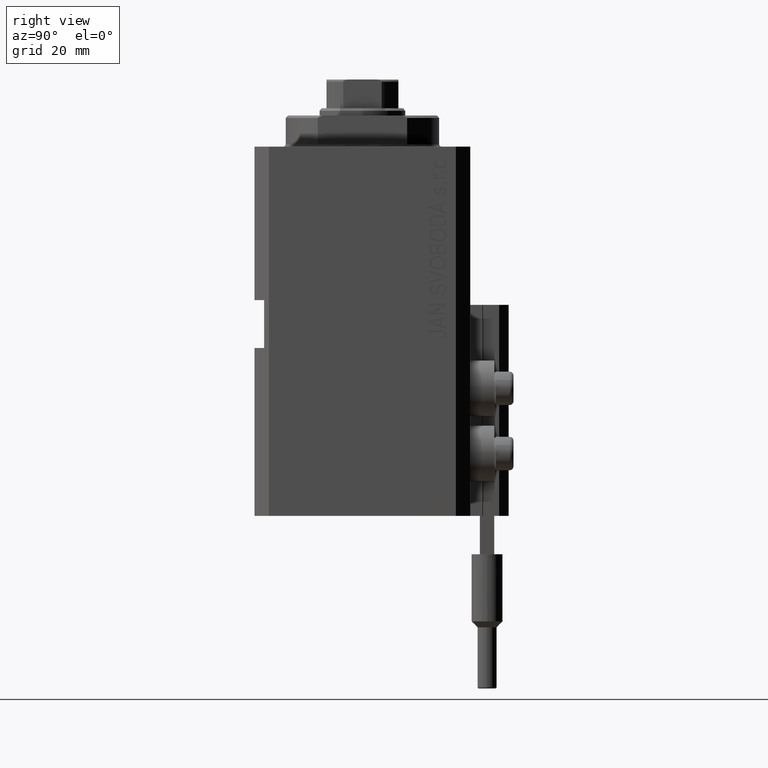
[diagram: clean part render]
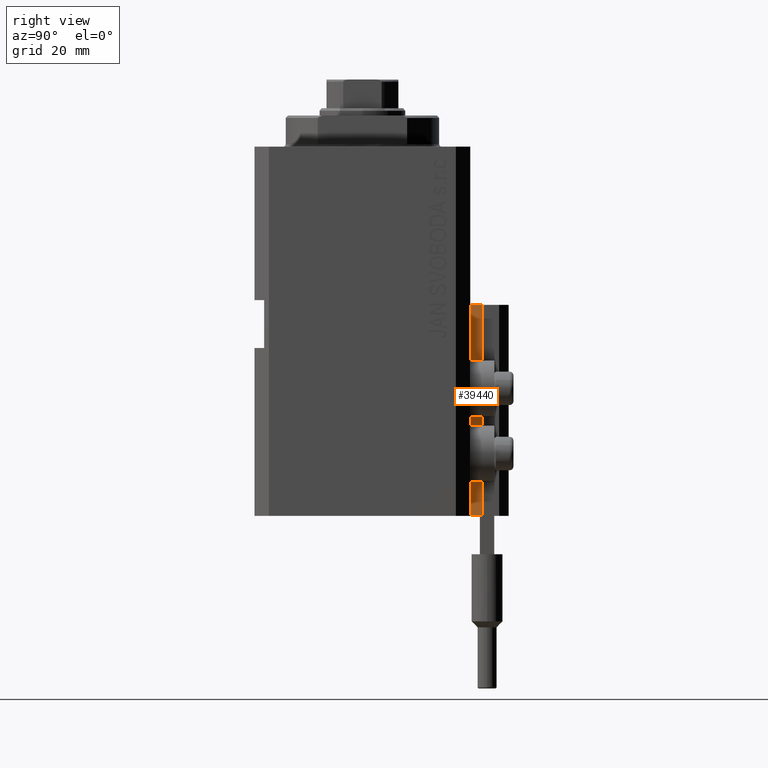
[diagram: same view with one face highlighted and labeled with its STEP entity id]
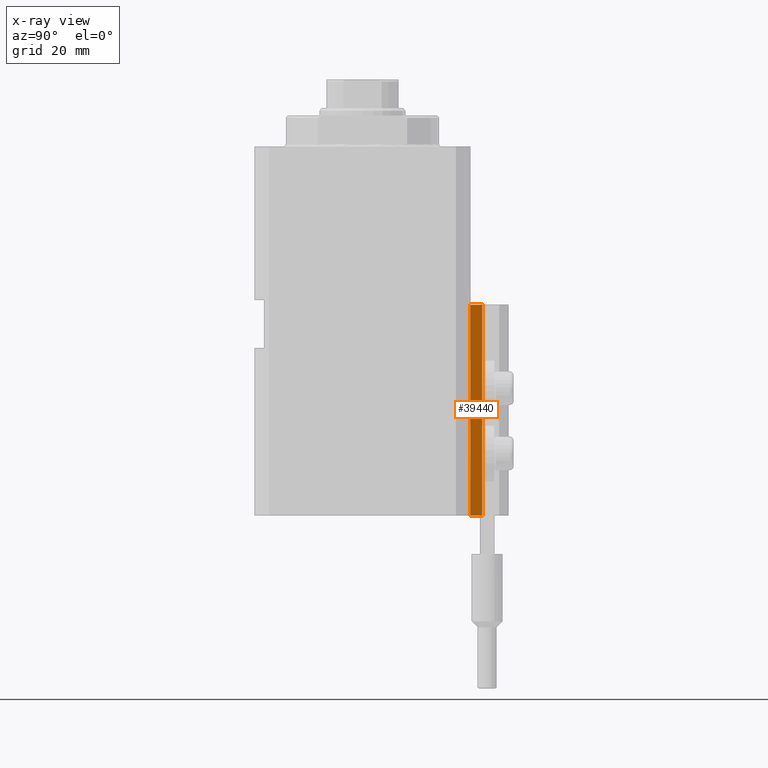
[diagram: x-ray of the same camera — body ghosted, the highlighted face saturated]
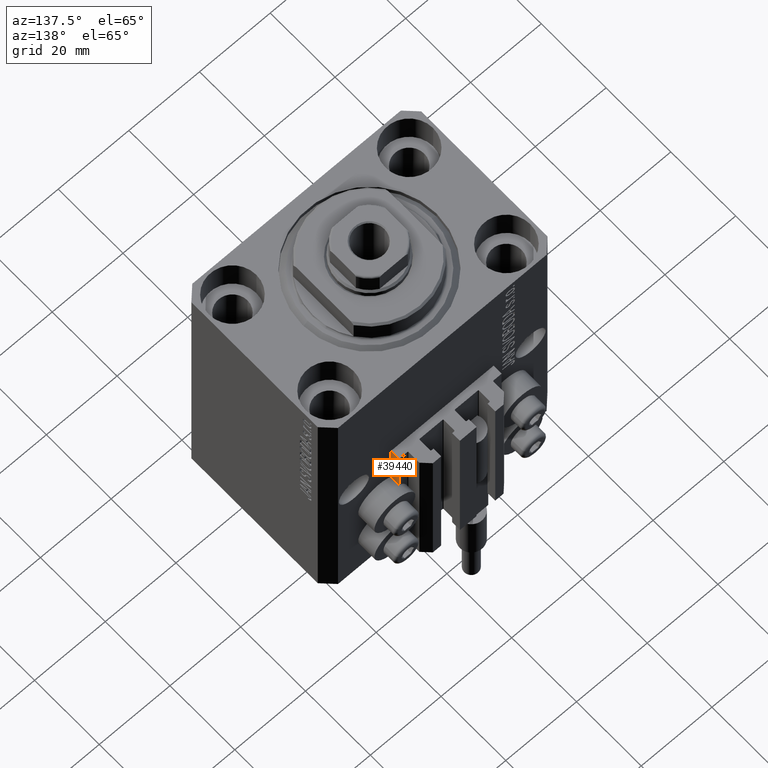
[diagram: same view with one face highlighted and labeled with its STEP entity id]
A machine part, right view. The second image highlights one B-rep face of the part: STEP entity #39440.
The next image is the same camera in x-ray: the body ghosted, the highlighted face saturated — about 0% of this face is hidden behind the body in this view.
A second angle (auxiliary view) of the same face is appended — the face is thin or edge-on in the first view.
In plain terms, the highlighted planar face has unit normal (1, -0, 0).
Its self-contained STEP definition (entity closure, byte-faithful):
#541 = LINE ( 'NONE', #4409, #44459 ) ;
#3801 = VECTOR ( 'NONE', #25902, 1000.000000000000000 ) ;
#4409 = CARTESIAN_POINT ( 'NONE',  ( 14.49999999999999645, 22.49999999999949907, -77.00000000000000000 ) ) ;
#4462 = ORIENTED_EDGE ( 'NONE', *, *, #6423, .F. ) ;
#5735 = VERTEX_POINT ( 'NONE', #11100 ) ;
#6423 = EDGE_CURVE ( 'NONE', #5735, #7616, #541, .T. ) ;
#7616 = VERTEX_POINT ( 'NONE', #9903 ) ;
#7713 = CARTESIAN_POINT ( 'NONE',  ( 14.49999999999999645, 22.49999999999949907, -33.00000000000000000 ) ) ;
#9903 = CARTESIAN_POINT ( 'NONE',  ( 14.49999999999999645, 22.49999999999949907, -33.00000000000000000 ) ) ;
#10652 = ORIENTED_EDGE ( 'NONE', *, *, #38747, .T. ) ;
#11100 = CARTESIAN_POINT ( 'NONE',  ( 14.49999999999999645, 22.49999999999949907, -77.00000000000000000 ) ) ;
#11118 = LINE ( 'NONE', #7713, #3801 ) ;
#13272 = VECTOR ( 'NONE', #42652, 1000.000000000000000 ) ;
#13297 = CARTESIAN_POINT ( 'NONE',  ( 14.49999999999999822, 24.99999999999950617, -77.00000000000000000 ) ) ;
#14042 = AXIS2_PLACEMENT_3D ( 'NONE', #41428, #27544, #20756 ) ;
#15380 = VECTOR ( 'NONE', #33878, 1000.000000000000000 ) ;
#20756 = DIRECTION ( 'NONE',  ( 6.938893903907212600E-16, 1.000000000000000000, 0.000000000000000000 ) ) ;
#20770 = EDGE_CURVE ( 'NONE', #5735, #45159, #34123, .T. ) ;
#25902 = DIRECTION ( 'NONE',  ( 6.938893903907212600E-16, 1.000000000000000000, 0.000000000000000000 ) ) ;
#26627 = PLANE ( 'NONE',  #14042 ) ;
#27544 = DIRECTION ( 'NONE',  ( 1.000000000000000000, -6.938893903907212600E-16, 0.000000000000000000 ) ) ;
#28972 = EDGE_LOOP ( 'NONE', ( #29914, #4462, #35491, #10652 ) ) ;
#29914 = ORIENTED_EDGE ( 'NONE', *, *, #34033, .F. ) ;
#33878 = DIRECTION ( 'NONE',  ( 6.938893903907212600E-16, 1.000000000000000000, 0.000000000000000000 ) ) ;
#34033 = EDGE_CURVE ( 'NONE', #7616, #34592, #11118, .T. ) ;
#34123 = LINE ( 'NONE', #42145, #15380 ) ;
#34592 = VERTEX_POINT ( 'NONE', #37350 ) ;
#35491 = ORIENTED_EDGE ( 'NONE', *, *, #20770, .T. ) ;
#37350 = CARTESIAN_POINT ( 'NONE',  ( 14.49999999999999822, 24.99999999999950617, -33.00000000000000000 ) ) ;
#38327 = DIRECTION ( 'NONE',  ( 0.000000000000000000, 0.000000000000000000, 1.000000000000000000 ) ) ;
#38747 = EDGE_CURVE ( 'NONE', #45159, #34592, #46298, .T. ) ;
#39440 = ADVANCED_FACE ( 'NONE', ( #46277 ), #26627, .T. ) ;
#41428 = CARTESIAN_POINT ( 'NONE',  ( 14.49999999999999645, 22.49999999999949907, -77.00000000000000000 ) ) ;
#42145 = CARTESIAN_POINT ( 'NONE',  ( 14.49999999999999645, 22.49999999999949907, -77.00000000000000000 ) ) ;
#42652 = DIRECTION ( 'NONE',  ( 0.000000000000000000, 0.000000000000000000, 1.000000000000000000 ) ) ;
#44459 = VECTOR ( 'NONE', #38327, 1000.000000000000000 ) ;
#45159 = VERTEX_POINT ( 'NONE', #46035 ) ;
#46035 = CARTESIAN_POINT ( 'NONE',  ( 14.49999999999999822, 24.99999999999950617, -77.00000000000000000 ) ) ;
#46277 = FACE_OUTER_BOUND ( 'NONE', #28972, .T. ) ;
#46298 = LINE ( 'NONE', #13297, #13272 ) ;